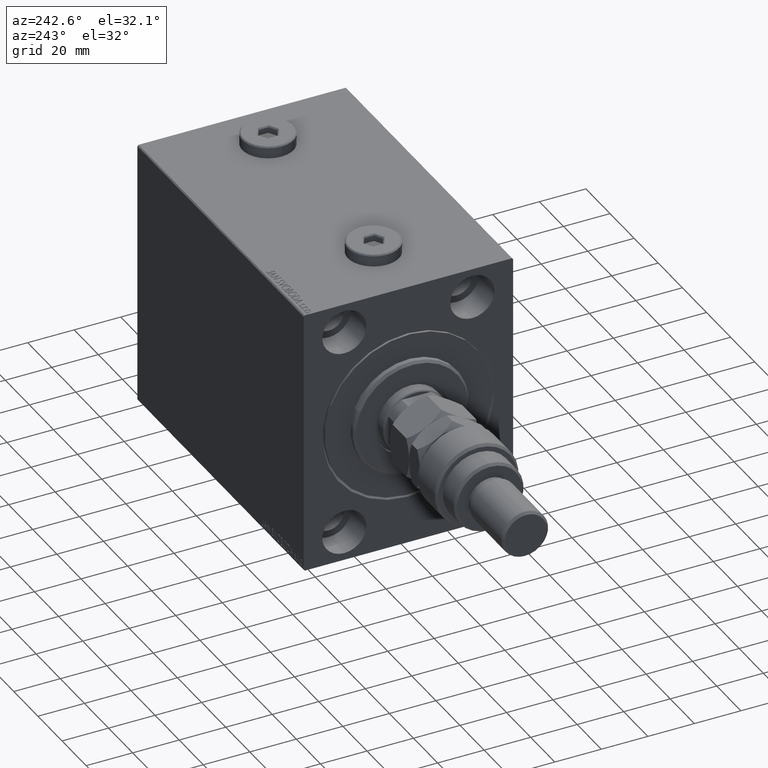
[diagram: clean part render]
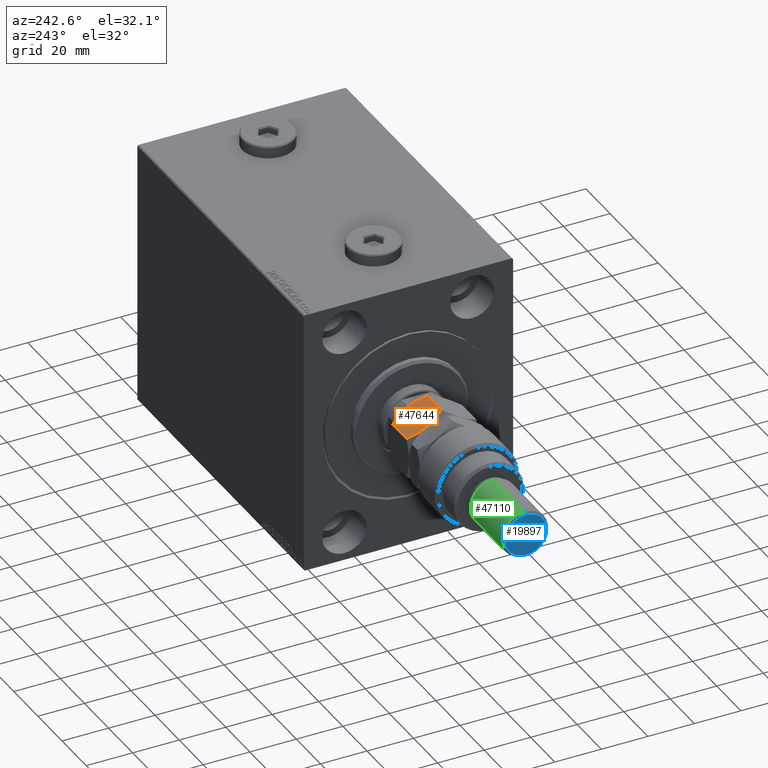
[diagram: same view with three faces highlighted in distinct colors, each labeled with its STEP entity id]
A machine part, auxiliary view with three faces highlighted in distinct colors.
Their STEP definitions:

[orange] entity #47644 — the highlighted planar face has unit normal (-0, -0.5, -0.866).
#329 = DIRECTION ( 'NONE',  ( 0.8660254037844387076, -0.4999999999999997224, 0.000000000000000000 ) ) ;
#439 = CARTESIAN_POINT ( 'NONE',  ( 7.500000000000000000, 12.99038105676657651, 16.00000000000000000 ) ) ;
#614 = CARTESIAN_POINT ( 'NONE',  ( 7.500000000000000000, 12.99038105676657651, 16.00000000000000000 ) ) ;
#859 = CARTESIAN_POINT ( 'NONE',  ( 4.913081180497409939, 14.48393933357810504, 15.76967007806078946 ) ) ;
#1091 = ORIENTED_EDGE ( 'NONE', *, *, #25734, .F. ) ;
#1117 = CARTESIAN_POINT ( 'NONE',  ( 1.176108425306640504, 16.64148155974179843, 1.641481559741787111 ) ) ;
#1358 = CARTESIAN_POINT ( 'NONE',  ( 4.881674457977373649, 14.50207201327941320, 0.2838026619462936107 ) ) ;
#3798 = DIRECTION ( 'NONE',  ( -0.000000000000000000, -0.000000000000000000, -1.000000000000000000 ) ) ;
#5019 = CARTESIAN_POINT ( 'NONE',  ( 6.843123817691747490, 13.36962869744650639, -3.557538378468061917E-16 ) ) ;
#5248 = CARTESIAN_POINT ( 'NONE',  ( 8.156876182308252510, 12.61113341608665728, 16.00000000000000355 ) ) ;
#7211 = B_SPLINE_CURVE_WITH_KNOTS ( 'NONE', 3,
 ( #40568, #33257, #22060, #7214, #38132, #39103, #5248, #31052 ),
 .UNSPECIFIED., .F., .F.,
 ( 4, 2, 2, 4 ),
 ( 2.544309033641602453E-07, 0.004488823491893906975, 0.006733108022389177119, 0.008977392552884448998 ),
 .UNSPECIFIED. ) ;
#7214 = CARTESIAN_POINT ( 'NONE',  ( 10.75222765045651663, 11.11270654730956586, 15.55242859148697576 ) ) ;
#7402 = CARTESIAN_POINT ( 'NONE',  ( 15.00000000000000000, 8.660254037844389075, 16.00000000000000000 ) ) ;
#7498 = CARTESIAN_POINT ( 'NONE',  ( 0.000000000000000000, 17.32050807568877104, 16.00000000000000000 ) ) ;
#7660 = B_SPLINE_CURVE_WITH_KNOTS ( 'NONE', 3,
 ( #43312, #24788, #39667, #14085, #10654, #20915 ),
 .UNSPECIFIED., .F., .F.,
 ( 4, 2, 4 ),
 ( 0.008977392552884443794, 0.01343452311421656532, 0.01789165367554868685 ),
 .UNSPECIFIED. ) ;
#7837 = B_SPLINE_CURVE_WITH_KNOTS ( 'NONE', 3,
 ( #45682, #1117, #42278, #45926, #1358, #34725, #5019, #16213 ),
 .UNSPECIFIED., .F., .F.,
 ( 4, 2, 2, 4 ),
 ( 2.544309033652185071E-07, 0.004488823491893902638, 0.006733108022389172782, 0.008977392552884443794 ),
 .UNSPECIFIED. ) ;
#8720 = ORIENTED_EDGE ( 'NONE', *, *, #43941, .F. ) ;
#10035 = CARTESIAN_POINT ( 'NONE',  ( 3.803331551779305683E-16, 17.32050807568877104, 13.67949192431124317 ) ) ;
#10272 = CARTESIAN_POINT ( 'NONE',  ( 2.383929548160350631, 15.94414570932928576, 14.93952096862913059 ) ) ;
#10654 = CARTESIAN_POINT ( 'NONE',  ( 13.82525345580783949, 9.338494271363313004, 1.642267842169781833 ) ) ;
#12187 = CARTESIAN_POINT ( 'NONE',  ( 7.499999999999997335, 12.99038105676658184, 0.000000000000000000 ) ) ;
#14085 = CARTESIAN_POINT ( 'NONE',  ( 12.61607045183964715, 10.03661640420386902, 1.060479031370879843 ) ) ;
#16213 = CARTESIAN_POINT ( 'NONE',  ( 7.499999999999997335, 12.99038105676658184, 0.000000000000000000 ) ) ;
#16661 = CARTESIAN_POINT ( 'NONE',  ( 7.621669386706803087E-17, 17.32050807568877104, 2.320508075688761718 ) ) ;
#17385 = VERTEX_POINT ( 'NONE', #12187 ) ;
#18889 = LINE ( 'NONE', #45432, #31371 ) ;
#18898 = EDGE_CURVE ( 'NONE', #20270, #38785, #18889, .T. ) ;
#20270 = VERTEX_POINT ( 'NONE', #24215 ) ;
#20915 = CARTESIAN_POINT ( 'NONE',  ( 15.00000000000000000, 8.660254037844389075, 2.320508075688765715 ) ) ;
#21876 = VERTEX_POINT ( 'NONE', #439 ) ;
#22060 = CARTESIAN_POINT ( 'NONE',  ( 12.62116548881249756, 10.03367478323606221, 14.93551393225599710 ) ) ;
#22217 = CARTESIAN_POINT ( 'NONE',  ( 15.00000000000000000, 8.660254037844389075, 2.320508075688765715 ) ) ;
#23018 = CARTESIAN_POINT ( 'NONE',  ( 6.195449321423087241, 13.74356374221446764, 16.00000000000000355 ) ) ;
#24110 = ORIENTED_EDGE ( 'NONE', *, *, #36619, .F. ) ;
#24215 = CARTESIAN_POINT ( 'NONE',  ( 15.00000000000000000, 8.660254037844389075, 13.67949192431123784 ) ) ;
#24788 = CARTESIAN_POINT ( 'NONE',  ( 8.804550678576910983, 12.23719837131869426, -5.031375706690542042E-16 ) ) ;
#25734 = EDGE_CURVE ( 'NONE', #32123, #17385, #7837, .T. ) ;
#25932 = ORIENTED_EDGE ( 'NONE', *, *, #40580, .F. ) ;
#26127 = DIRECTION ( 'NONE',  ( -0.4999999999999997780, -0.8660254037844388186, 0.000000000000000000 ) ) ;
#27800 = B_SPLINE_CURVE_WITH_KNOTS ( 'NONE', 3,
 ( #614, #23018, #859, #10272, #46571, #10035 ),
 .UNSPECIFIED., .F., .F.,
 ( 4, 2, 4 ),
 ( 0.008977392552884448998, 0.01343452311421656706, 0.01789165367554868338 ),
 .UNSPECIFIED. ) ;
#27803 = EDGE_LOOP ( 'NONE', ( #1091, #44988, #25932, #24110, #33186, #8720 ) ) ;
#28096 = AXIS2_PLACEMENT_3D ( 'NONE', #7402, #26127, #329 ) ;
#29402 = LINE ( 'NONE', #7498, #32527 ) ;
#29547 = FACE_OUTER_BOUND ( 'NONE', #27803, .T. ) ;
#29644 = DIRECTION ( 'NONE',  ( -0.000000000000000000, -0.000000000000000000, -1.000000000000000000 ) ) ;
#31052 = CARTESIAN_POINT ( 'NONE',  ( 7.500000000000000000, 12.99038105676657651, 16.00000000000000000 ) ) ;
#31371 = VECTOR ( 'NONE', #3798, 1000.000000000000000 ) ;
#32123 = VERTEX_POINT ( 'NONE', #16661 ) ;
#32527 = VECTOR ( 'NONE', #29644, 1000.000000000000000 ) ;
#32803 = CARTESIAN_POINT ( 'NONE',  ( 3.803331551779305683E-16, 17.32050807568877104, 13.67949192431124317 ) ) ;
#33186 = ORIENTED_EDGE ( 'NONE', *, *, #18898, .T. ) ;
#33257 = CARTESIAN_POINT ( 'NONE',  ( 13.82389157469336283, 9.339280553791368789, 14.35851844025821400 ) ) ;
#34725 = CARTESIAN_POINT ( 'NONE',  ( 6.176419610670692784, 13.75455055083996214, 0.05953537397470201609 ) ) ;
#36619 = EDGE_CURVE ( 'NONE', #20270, #21876, #7211, .T. ) ;
#37343 = VERTEX_POINT ( 'NONE', #32803 ) ;
#37598 = PLANE ( 'NONE',  #28096 ) ;
#38132 = CARTESIAN_POINT ( 'NONE',  ( 10.11832554202262457, 11.47869010025374514, 15.71619733805371411 ) ) ;
#38785 = VERTEX_POINT ( 'NONE', #22217 ) ;
#39103 = CARTESIAN_POINT ( 'NONE',  ( 8.823580389329306328, 12.22621156269319798, 15.94046462602529957 ) ) ;
#39667 = CARTESIAN_POINT ( 'NONE',  ( 10.08691881950258740, 11.49682277995505331, 0.2303299219392160591 ) ) ;
#40133 = EDGE_CURVE ( 'NONE', #37343, #32123, #29402, .T. ) ;
#40568 = CARTESIAN_POINT ( 'NONE',  ( 15.00000000000000000, 8.660254037844389075, 13.67949192431123784 ) ) ;
#40580 = EDGE_CURVE ( 'NONE', #21876, #37343, #27800, .T. ) ;
#42278 = CARTESIAN_POINT ( 'NONE',  ( 2.378834511187503331, 15.94708733029709080, 1.064486067744004671 ) ) ;
#43312 = CARTESIAN_POINT ( 'NONE',  ( 7.499999999999997335, 12.99038105676658184, 0.000000000000000000 ) ) ;
#43941 = EDGE_CURVE ( 'NONE', #17385, #38785, #7660, .T. ) ;
#44988 = ORIENTED_EDGE ( 'NONE', *, *, #40133, .F. ) ;
#45432 = CARTESIAN_POINT ( 'NONE',  ( 15.00000000000000000, 8.660254037844389075, 16.00000000000000000 ) ) ;
#45682 = CARTESIAN_POINT ( 'NONE',  ( 7.621669386706803087E-17, 17.32050807568877104, 2.320508075688761718 ) ) ;
#45926 = CARTESIAN_POINT ( 'NONE',  ( 4.247772349543482484, 14.86805556622358893, 0.4475714085130255149 ) ) ;
#46571 = CARTESIAN_POINT ( 'NONE',  ( 1.174746544192161846, 16.64226784216984356, 14.35773215783022572 ) ) ;
#47644 = ADVANCED_FACE ( 'NONE', ( #29547 ), #37598, .F. ) ;

[blue] entity #19897 — the highlighted planar face has unit normal (-1, 0, 0).
#2602 = DIRECTION ( 'NONE',  ( 0.000000000000000000, 0.000000000000000000, 1.000000000000000000 ) ) ;
#3621 = DIRECTION ( 'NONE',  ( 1.000000000000000000, 0.000000000000000000, 0.000000000000000000 ) ) ;
#3857 = DIRECTION ( 'NONE',  ( 0.000000000000000000, 0.000000000000000000, 1.000000000000000000 ) ) ;
#6564 = CIRCLE ( 'NONE', #36110, 8.999999999999987566 ) ;
#14416 = CARTESIAN_POINT ( 'NONE',  ( 0.000000000000000000, 0.000000000000000000, 56.00000000000000711 ) ) ;
#17254 = VERTEX_POINT ( 'NONE', #28281 ) ;
#18223 = CARTESIAN_POINT ( 'NONE',  ( -8.999999999999987566, 0.000000000000000000, 56.00000000000000711 ) ) ;
#19897 = ADVANCED_FACE ( 'NONE', ( #43495 ), #39619, .T. ) ;
#21020 = DIRECTION ( 'NONE',  ( 0.000000000000000000, 0.000000000000000000, 1.000000000000000000 ) ) ;
#21109 = CARTESIAN_POINT ( 'NONE',  ( 0.000000000000000000, 0.000000000000000000, 56.00000000000000711 ) ) ;
#21487 = DIRECTION ( 'NONE',  ( 1.000000000000000000, 0.000000000000000000, 0.000000000000000000 ) ) ;
#21781 = EDGE_CURVE ( 'NONE', #17254, #21814, #6564, .T. ) ;
#21814 = VERTEX_POINT ( 'NONE', #18223 ) ;
#22120 = CARTESIAN_POINT ( 'NONE',  ( 0.000000000000000000, 0.000000000000000000, 56.00000000000000711 ) ) ;
#22848 = AXIS2_PLACEMENT_3D ( 'NONE', #21109, #2602, #46674 ) ;
#27657 = ORIENTED_EDGE ( 'NONE', *, *, #21781, .T. ) ;
#28281 = CARTESIAN_POINT ( 'NONE',  ( 8.999999999999987566, 1.163414459189984894E-15, 56.00000000000000711 ) ) ;
#28715 = CIRCLE ( 'NONE', #33377, 8.999999999999987566 ) ;
#33377 = AXIS2_PLACEMENT_3D ( 'NONE', #14416, #21020, #21487 ) ;
#36110 = AXIS2_PLACEMENT_3D ( 'NONE', #22120, #3857, #3621 ) ;
#39137 = EDGE_LOOP ( 'NONE', ( #40781, #27657 ) ) ;
#39619 = PLANE ( 'NONE',  #22848 ) ;
#40781 = ORIENTED_EDGE ( 'NONE', *, *, #42047, .T. ) ;
#42047 = EDGE_CURVE ( 'NONE', #21814, #17254, #28715, .T. ) ;
#43495 = FACE_OUTER_BOUND ( 'NONE', #39137, .T. ) ;
#46674 = DIRECTION ( 'NONE',  ( 1.000000000000000000, 0.000000000000000000, -0.000000000000000000 ) ) ;

[green] entity #47110 — the highlighted cylindrical surface (edge-blend (fillet) strip) has radius 10 mm, axis along (1, -0, -0).
#759 = CARTESIAN_POINT ( 'NONE',  ( 0.000000000000000000, 0.000000000000000000, 29.00000000000000711 ) ) ;
#1775 = EDGE_CURVE ( 'NONE', #16746, #39545, #29915, .T. ) ;
#3601 = DIRECTION ( 'NONE',  ( -0.000000000000000000, -0.000000000000000000, -1.000000000000000000 ) ) ;
#4619 = VECTOR ( 'NONE', #44778, 1000.000000000000000 ) ;
#6071 = CARTESIAN_POINT ( 'NONE',  ( 0.000000000000000000, 0.000000000000000000, 54.99999999999998579 ) ) ;
#6282 = EDGE_CURVE ( 'NONE', #32558, #43603, #22099, .T. ) ;
#8065 = DIRECTION ( 'NONE',  ( -1.000000000000000000, 0.000000000000000000, 0.000000000000000000 ) ) ;
#8552 = DIRECTION ( 'NONE',  ( -0.000000000000000000, -0.000000000000000000, 1.000000000000000000 ) ) ;
#9963 = DIRECTION ( 'NONE',  ( 0.000000000000000000, 0.000000000000000000, -1.000000000000000000 ) ) ;
#11969 = DIRECTION ( 'NONE',  ( 1.000000000000000000, 0.000000000000000000, 0.000000000000000000 ) ) ;
#12203 = FACE_OUTER_BOUND ( 'NONE', #45603, .T. ) ;
#12903 = CARTESIAN_POINT ( 'NONE',  ( 10.00000000000000000, 1.224646799147353256E-15, 54.99999999999998579 ) ) ;
#14137 = CIRCLE ( 'NONE', #20361, 10.00000000000000000 ) ;
#16132 = ORIENTED_EDGE ( 'NONE', *, *, #39421, .T. ) ;
#16746 = VERTEX_POINT ( 'NONE', #12903 ) ;
#18214 = ORIENTED_EDGE ( 'NONE', *, *, #48035, .T. ) ;
#19422 = VECTOR ( 'NONE', #3601, 1000.000000000000000 ) ;
#20361 = AXIS2_PLACEMENT_3D ( 'NONE', #759, #8552, #11969 ) ;
#22099 = LINE ( 'NONE', #48145, #19422 ) ;
#22693 = CARTESIAN_POINT ( 'NONE',  ( -10.00000000000000000, 0.000000000000000000, 29.00000000000000711 ) ) ;
#26020 = CARTESIAN_POINT ( 'NONE',  ( 10.00000000000000000, 1.224646799147353256E-15, 56.00000000000000711 ) ) ;
#27906 = CARTESIAN_POINT ( 'NONE',  ( -10.00000000000000000, 0.000000000000000000, 54.99999999999998579 ) ) ;
#29915 = LINE ( 'NONE', #26020, #4619 ) ;
#30698 = CYLINDRICAL_SURFACE ( 'NONE', #41309, 10.00000000000000000 ) ;
#32558 = VERTEX_POINT ( 'NONE', #27906 ) ;
#33307 = CIRCLE ( 'NONE', #39558, 10.00000000000000000 ) ;
#33531 = ORIENTED_EDGE ( 'NONE', *, *, #1775, .T. ) ;
#33871 = CARTESIAN_POINT ( 'NONE',  ( 0.000000000000000000, 0.000000000000000000, 56.00000000000000711 ) ) ;
#34210 = CARTESIAN_POINT ( 'NONE',  ( 10.00000000000000000, 1.224646799147353256E-15, 29.00000000000000711 ) ) ;
#38497 = DIRECTION ( 'NONE',  ( -0.000000000000000000, -0.000000000000000000, -1.000000000000000000 ) ) ;
#39421 = EDGE_CURVE ( 'NONE', #32558, #16746, #33307, .T. ) ;
#39545 = VERTEX_POINT ( 'NONE', #34210 ) ;
#39558 = AXIS2_PLACEMENT_3D ( 'NONE', #6071, #9963, #46013 ) ;
#41309 = AXIS2_PLACEMENT_3D ( 'NONE', #33871, #38497, #8065 ) ;
#43095 = ORIENTED_EDGE ( 'NONE', *, *, #6282, .F. ) ;
#43603 = VERTEX_POINT ( 'NONE', #22693 ) ;
#44778 = DIRECTION ( 'NONE',  ( -0.000000000000000000, -0.000000000000000000, -1.000000000000000000 ) ) ;
#45603 = EDGE_LOOP ( 'NONE', ( #16132, #33531, #18214, #43095 ) ) ;
#46013 = DIRECTION ( 'NONE',  ( 1.000000000000000000, 0.000000000000000000, 0.000000000000000000 ) ) ;
#47110 = ADVANCED_FACE ( 'NONE', ( #12203 ), #30698, .T. ) ;
#48035 = EDGE_CURVE ( 'NONE', #39545, #43603, #14137, .T. ) ;
#48145 = CARTESIAN_POINT ( 'NONE',  ( -10.00000000000000000, 0.000000000000000000, 56.00000000000000711 ) ) ;